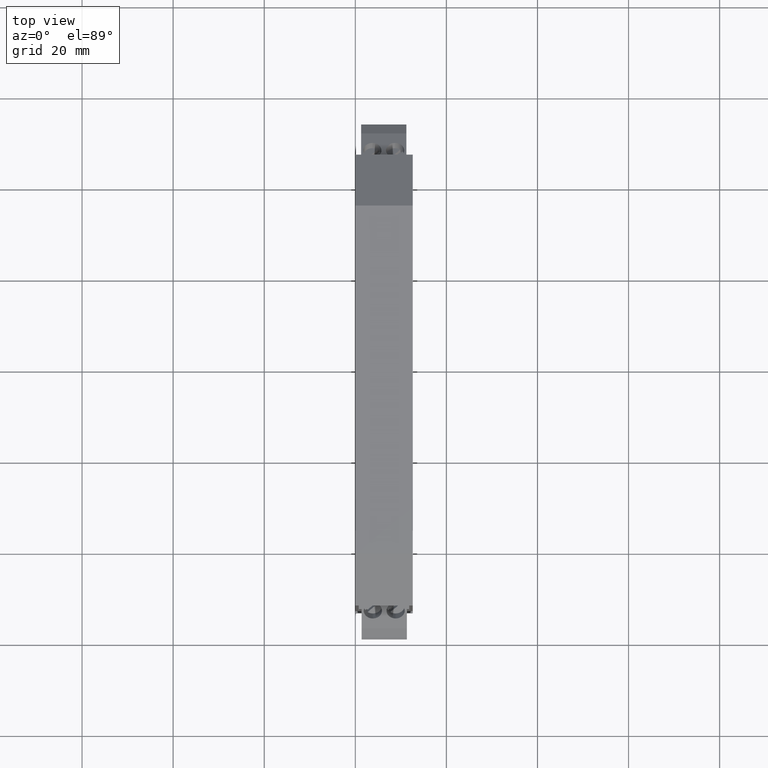
[diagram: clean part render]
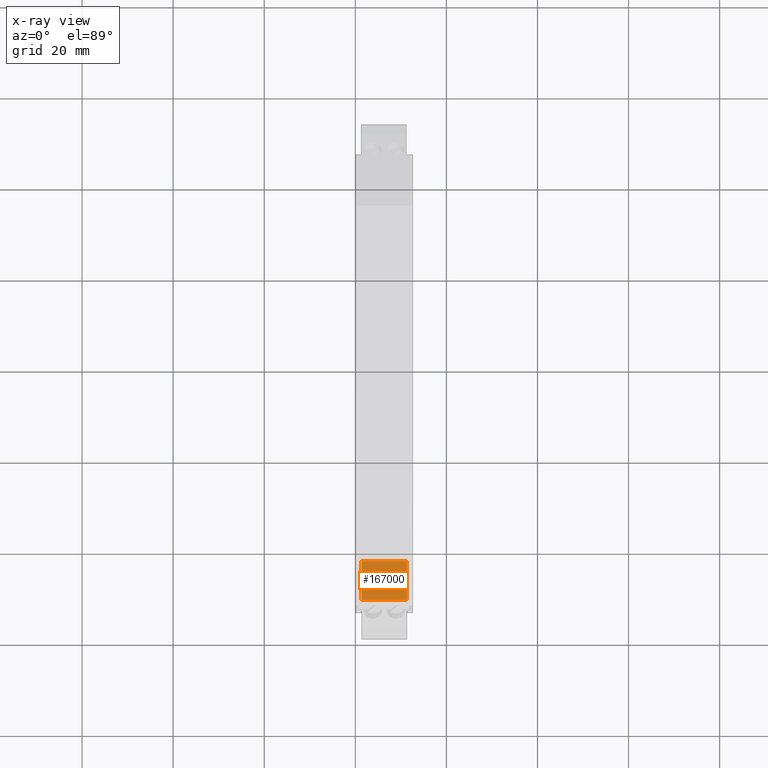
[diagram: x-ray — body ghosted, one internal face saturated and labeled with its STEP entity id]
A machine part, top view, then the same camera in x-ray: the body is ghosted and one INTERNAL B-rep face — a face not visible from any outside direction — is saturated and labeled: STEP entity #167000.
In plain terms, the highlighted planar face has unit normal (0, -0.5446, 0.8387).
Its self-contained STEP definition (entity closure, byte-faithful):
#163030=CARTESIAN_POINT('',(9.95,15.5,19.2999999999997));
#163040=VERTEX_POINT('',#163030);
#163090=CARTESIAN_POINT('',(9.95,15.5,18.3199999999997));
#163100=DIRECTION('',(0.,-2.49979981086976E-17,1.));
#163110=VECTOR('',#163100,1.);
#163120=LINE('',#163090,#163110);
#163130=CARTESIAN_POINT('',(9.95,15.5,9.19999999999972));
#163140=VERTEX_POINT('',#163130);
#163150=EDGE_CURVE('',#163140,#163040,#163120,.T.);
#166020=CARTESIAN_POINT('',(0.,15.5,9.19999999999972));
#166030=VERTEX_POINT('',#166020);
#166060=CARTESIAN_POINT('',(0.,15.5,-13.7140685734129));
#166070=DIRECTION('',(0.,2.49979981086976E-17,-1.));
#166080=VECTOR('',#166070,1.);
#166090=LINE('',#166060,#166080);
#166100=CARTESIAN_POINT('',(0.,15.5,19.2999999999997));
#166110=VERTEX_POINT('',#166100);
#166120=EDGE_CURVE('',#166110,#166030,#166090,.T.);
#166790=CARTESIAN_POINT('',(9.95,15.5,18.9999999999997));
#166800=DIRECTION('',(-0.,-1.,-2.49979981086976E-17));
#166810=DIRECTION('',(0.,-2.49979981086976E-17,1.));
#166820=AXIS2_PLACEMENT_3D('',#166790,#166800,#166810);
#166830=PLANE('',#166820);
#166840=ORIENTED_EDGE('',*,*,#163150,.F.);
#166850=CARTESIAN_POINT('',(-10.025,15.5,19.2999999999997));
#166860=DIRECTION('',(1.,0.,0.));
#166870=VECTOR('',#166860,1.);
#166880=LINE('',#166850,#166870);
#166890=EDGE_CURVE('',#166110,#163040,#166880,.T.);
#166900=ORIENTED_EDGE('',*,*,#166890,.T.);
#166910=ORIENTED_EDGE('',*,*,#166120,.F.);
#166920=CARTESIAN_POINT('',(-10.025,15.5,9.19999999999972));
#166930=DIRECTION('',(-1.,0.,0.));
#166940=VECTOR('',#166930,1.);
#166950=LINE('',#166920,#166940);
#166960=EDGE_CURVE('',#163140,#166030,#166950,.T.);
#166970=ORIENTED_EDGE('',*,*,#166960,.T.);
#166980=EDGE_LOOP('',(#166970,#166910,#166900,#166840));
#166990=FACE_OUTER_BOUND('',#166980,.T.);
#167000=ADVANCED_FACE('',(#166990),#166830,.F.);